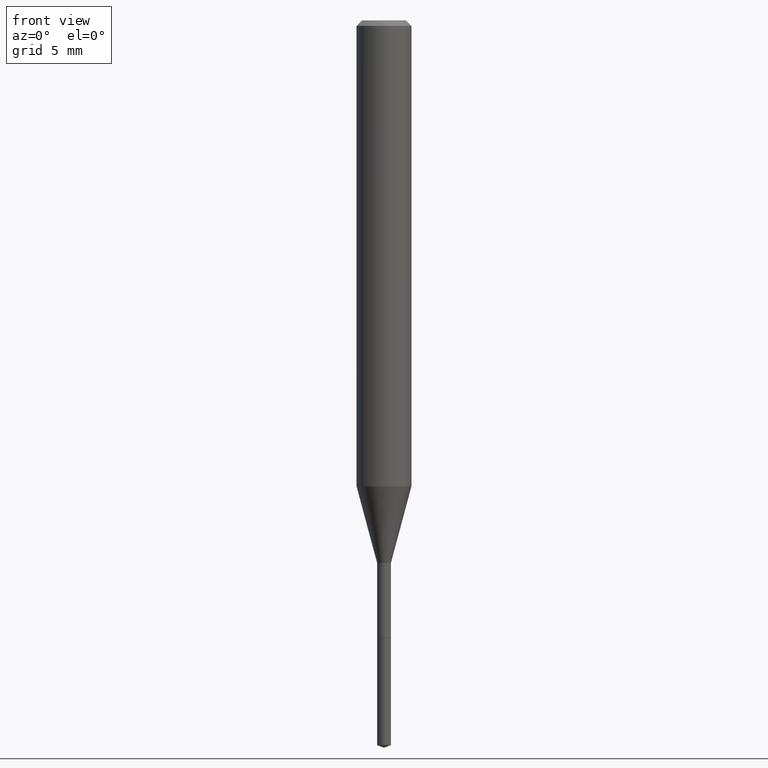
[diagram: clean part render]
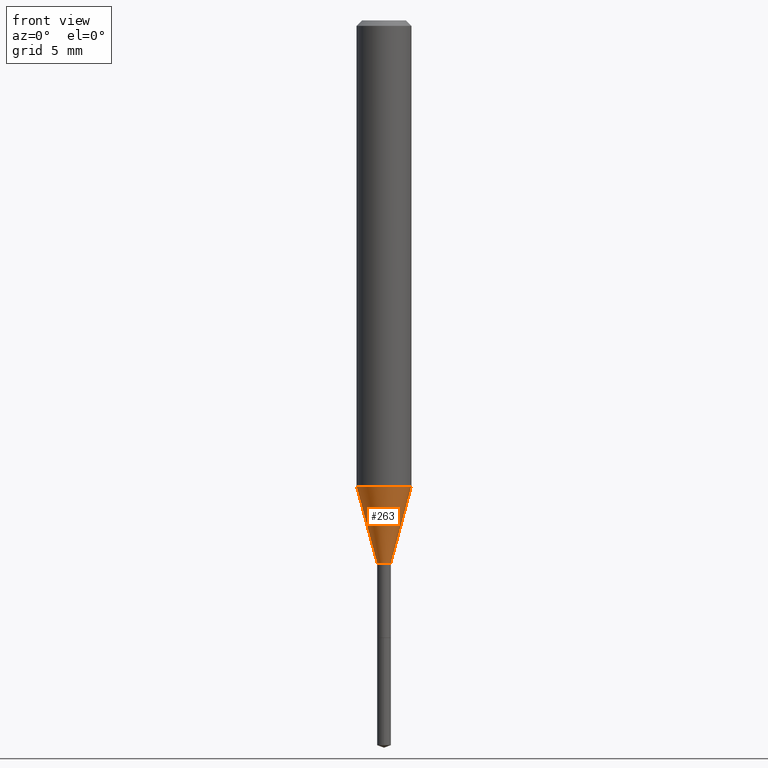
[diagram: same view with one face highlighted and labeled with its STEP entity id]
A machine part, front view. The second image highlights one B-rep face of the part: STEP entity #263.
In plain terms, the highlighted conical surface has half-angle 15 deg.
Its self-contained STEP definition (entity closure, byte-faithful):
#4 = ORIENTED_EDGE ( 'NONE', *, *, #393, .F. ) ;
#17 = VECTOR ( 'NONE', #316, 39.37007874015748854 ) ;
#26 = DIRECTION ( 'NONE',  ( -2.445468806185136597E-29, 3.491481338843145583E-15, 1.000000000000000000 ) ) ;
#44 = CARTESIAN_POINT ( 'NONE',  ( -0.01969999999999997101, -5.670197177024139216E-15, -1.557099999999999929 ) ) ;
#59 = DIRECTION ( 'NONE',  ( 1.000000000000000000, -6.982962677686288799E-15, 0.000000000000000000 ) ) ;
#85 = AXIS2_PLACEMENT_3D ( 'NONE', #371, #26, #261 ) ;
#95 = AXIS2_PLACEMENT_3D ( 'NONE', #441, #99, #59 ) ;
#99 = DIRECTION ( 'NONE',  ( -2.445468806185136597E-29, 3.491481338843145583E-15, 1.000000000000000000 ) ) ;
#130 = FACE_OUTER_BOUND ( 'NONE', #483, .T. ) ;
#144 = VERTEX_POINT ( 'NONE', #446 ) ;
#149 = VERTEX_POINT ( 'NONE', #202 ) ;
#152 = ORIENTED_EDGE ( 'NONE', *, *, #276, .F. ) ;
#166 = DIRECTION ( 'NONE',  ( 0.2588190451025206840, 1.565188264969626504E-15, 0.9659258262890682012 ) ) ;
#176 = EDGE_CURVE ( 'NONE', #144, #149, #297, .T. ) ;
#191 = ORIENTED_EDGE ( 'NONE', *, *, #176, .T. ) ;
#202 = CARTESIAN_POINT ( 'NONE',  ( 0.07875000000000015321, -5.217049625028709714E-15, -1.336722399813057072 ) ) ;
#218 = CARTESIAN_POINT ( 'NONE',  ( 0.01969999999999997101, -5.574149957463080987E-15, -1.557099999999999929 ) ) ;
#220 = CARTESIAN_POINT ( 'NONE',  ( -0.07875000000000015321, -4.107588909749834411E-15, -1.336722399813057072 ) ) ;
#223 = EDGE_CURVE ( 'NONE', #310, #144, #319, .T. ) ;
#224 = VECTOR ( 'NONE', #166, 39.37007874015748854 ) ;
#225 = AXIS2_PLACEMENT_3D ( 'NONE', #365, #477, #300 ) ;
#261 = DIRECTION ( 'NONE',  ( 1.000000000000000000, -6.982962677686272233E-15, 0.000000000000000000 ) ) ;
#263 = ADVANCED_FACE ( 'NONE', ( #130 ), #272, .T. ) ;
#270 = ORIENTED_EDGE ( 'NONE', *, *, #223, .T. ) ;
#272 = CONICAL_SURFACE ( 'NONE', #95, 0.01969999999999997101, 0.2617993877991494078 ) ;
#276 = EDGE_CURVE ( 'NONE', #430, #149, #425, .T. ) ;
#297 = LINE ( 'NONE', #218, #224 ) ;
#300 = DIRECTION ( 'NONE',  ( 1.000000000000000000, -6.982962677686288799E-15, 0.000000000000000000 ) ) ;
#310 = VERTEX_POINT ( 'NONE', #44 ) ;
#316 = DIRECTION ( 'NONE',  ( -0.2588190451025206840, 5.211531920934545520E-15, 0.9659258262890682012 ) ) ;
#319 = CIRCLE ( 'NONE', #225, 0.01969999999999997101 ) ;
#365 = CARTESIAN_POINT ( 'NONE',  ( 3.807839478110876143E-29, -5.436585592712660984E-15, -1.557099999999999929 ) ) ;
#371 = CARTESIAN_POINT ( 'NONE',  ( 3.268912931271767659E-29, -4.667141314160914791E-15, -1.336722399813057072 ) ) ;
#382 = LINE ( 'NONE', #489, #17 ) ;
#393 = EDGE_CURVE ( 'NONE', #310, #430, #382, .T. ) ;
#425 = CIRCLE ( 'NONE', #85, 0.07875000000000015321 ) ;
#430 = VERTEX_POINT ( 'NONE', #220 ) ;
#441 = CARTESIAN_POINT ( 'NONE',  ( 3.807839478110876143E-29, -5.436585592712660984E-15, -1.557099999999999929 ) ) ;
#446 = CARTESIAN_POINT ( 'NONE',  ( 0.01969999999999997101, -5.574149957463080987E-15, -1.557099999999999929 ) ) ;
#477 = DIRECTION ( 'NONE',  ( -2.445468806185136597E-29, 3.491481338843145583E-15, 1.000000000000000000 ) ) ;
#483 = EDGE_LOOP ( 'NONE', ( #4, #270, #191, #152 ) ) ;
#489 = CARTESIAN_POINT ( 'NONE',  ( -0.01969999999999997101, -5.296608673767921675E-15, -1.557099999999999929 ) ) ;